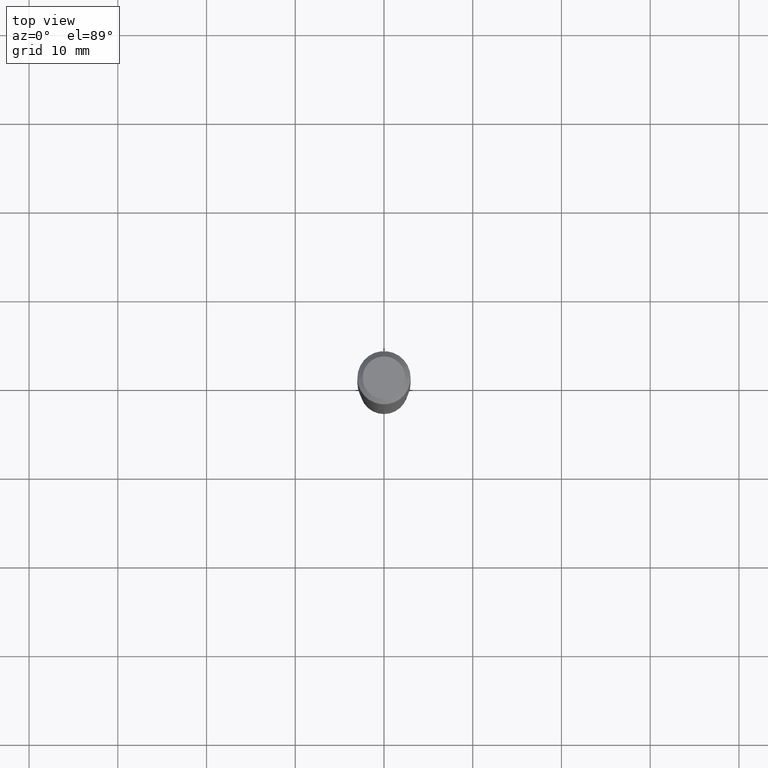
[diagram: clean part render]
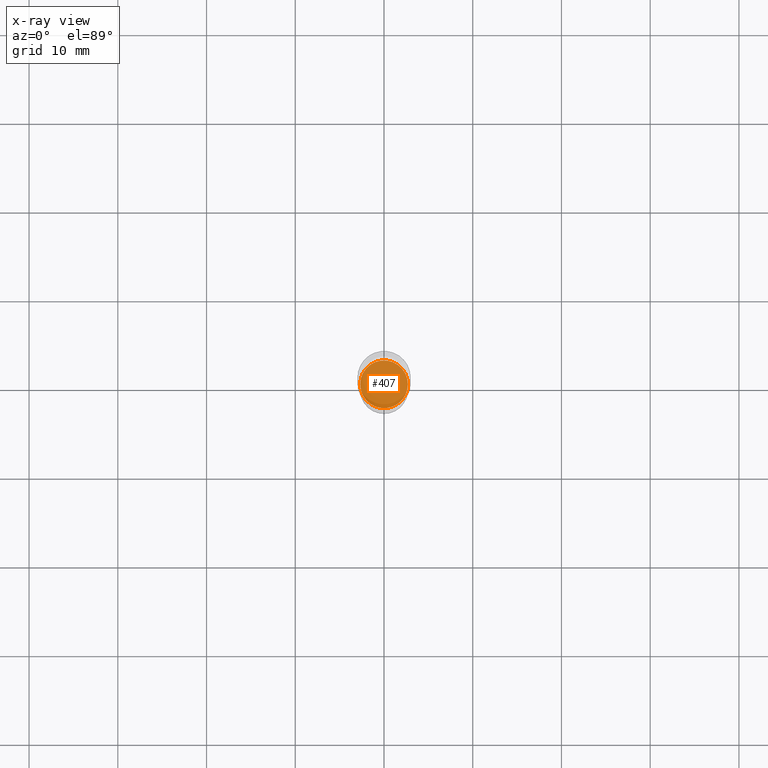
[diagram: x-ray — body ghosted, one internal face saturated and labeled with its STEP entity id]
A machine part, top view, then the same camera in x-ray: the body is ghosted and one INTERNAL B-rep face — a face not visible from any outside direction — is saturated and labeled: STEP entity #407.
In plain terms, the highlighted planar face has unit normal (-0, 0, 1).
Its self-contained STEP definition (entity closure, byte-faithful):
#4 = ORIENTED_EDGE ( 'NONE', *, *, #111, .F. ) ;
#7 = VERTEX_POINT ( 'NONE', #127 ) ;
#48 = CARTESIAN_POINT ( 'NONE',  ( 4.178328002247924925E-29, -5.965545015547399442E-15, -1.708600000000000119 ) ) ;
#58 = DIRECTION ( 'NONE',  ( 1.000000000000000000, -6.982962677686265922E-15, 4.876176775795935793E-29 ) ) ;
#59 = EDGE_CURVE ( 'NONE', #257, #7, #145, .T. ) ;
#102 = PLANE ( 'NONE',  #408 ) ;
#111 = EDGE_CURVE ( 'NONE', #7, #257, #364, .T. ) ;
#127 = CARTESIAN_POINT ( 'NONE',  ( 0.1058000000000000052, -6.704342466846605785E-15, -1.708600000000000119 ) ) ;
#145 = CIRCLE ( 'NONE', #222, 0.1058000000000000052 ) ;
#155 = AXIS2_PLACEMENT_3D ( 'NONE', #214, #301, #334 ) ;
#200 = EDGE_LOOP ( 'NONE', ( #4, #269 ) ) ;
#211 = CARTESIAN_POINT ( 'NONE',  ( 4.178328002247924925E-29, -5.965545015547399442E-15, -1.708600000000000119 ) ) ;
#214 = CARTESIAN_POINT ( 'NONE',  ( 4.178328002247924925E-29, -5.965545015547399442E-15, -1.708600000000000119 ) ) ;
#222 = AXIS2_PLACEMENT_3D ( 'NONE', #48, #243, #306 ) ;
#243 = DIRECTION ( 'NONE',  ( -2.445468806185136597E-29, 3.491481338843145583E-15, 1.000000000000000000 ) ) ;
#257 = VERTEX_POINT ( 'NONE', #343 ) ;
#269 = ORIENTED_EDGE ( 'NONE', *, *, #59, .F. ) ;
#301 = DIRECTION ( 'NONE',  ( -2.445468806185136597E-29, 3.491481338843145583E-15, 1.000000000000000000 ) ) ;
#306 = DIRECTION ( 'NONE',  ( 1.000000000000000000, -6.982962677686264344E-15, 0.000000000000000000 ) ) ;
#334 = DIRECTION ( 'NONE',  ( 1.000000000000000000, -6.982962677686264344E-15, 0.000000000000000000 ) ) ;
#343 = CARTESIAN_POINT ( 'NONE',  ( -0.1058000000000000052, -5.211141573939102208E-15, -1.708600000000000119 ) ) ;
#364 = CIRCLE ( 'NONE', #155, 0.1058000000000000052 ) ;
#406 = DIRECTION ( 'NONE',  ( -2.438088387897960049E-29, 3.491481338843145188E-15, 1.000000000000000000 ) ) ;
#407 = ADVANCED_FACE ( 'NONE', ( #450 ), #102, .F. ) ;
#408 = AXIS2_PLACEMENT_3D ( 'NONE', #211, #406, #58 ) ;
#450 = FACE_OUTER_BOUND ( 'NONE', #200, .T. ) ;